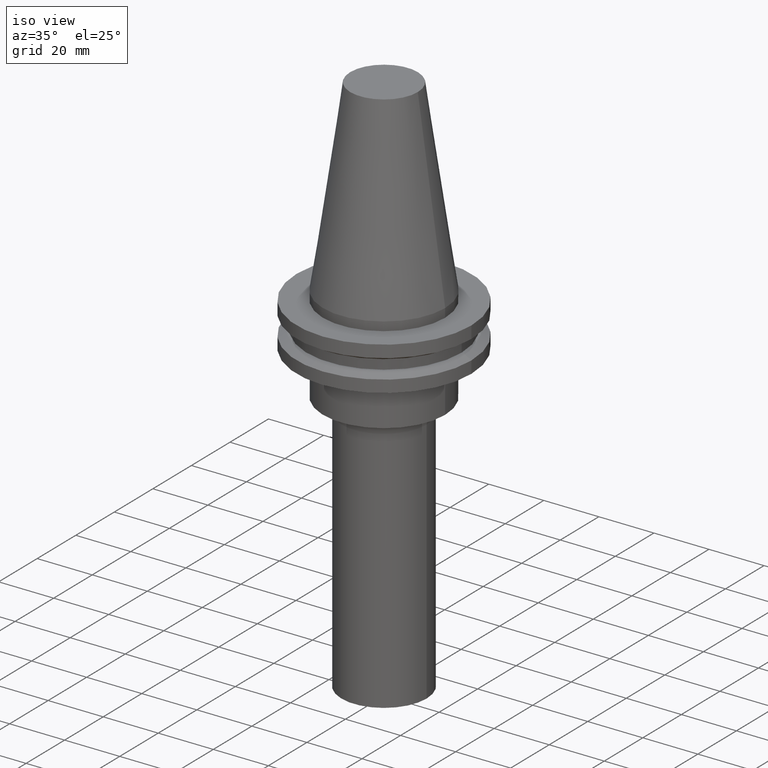
[diagram: clean part render]
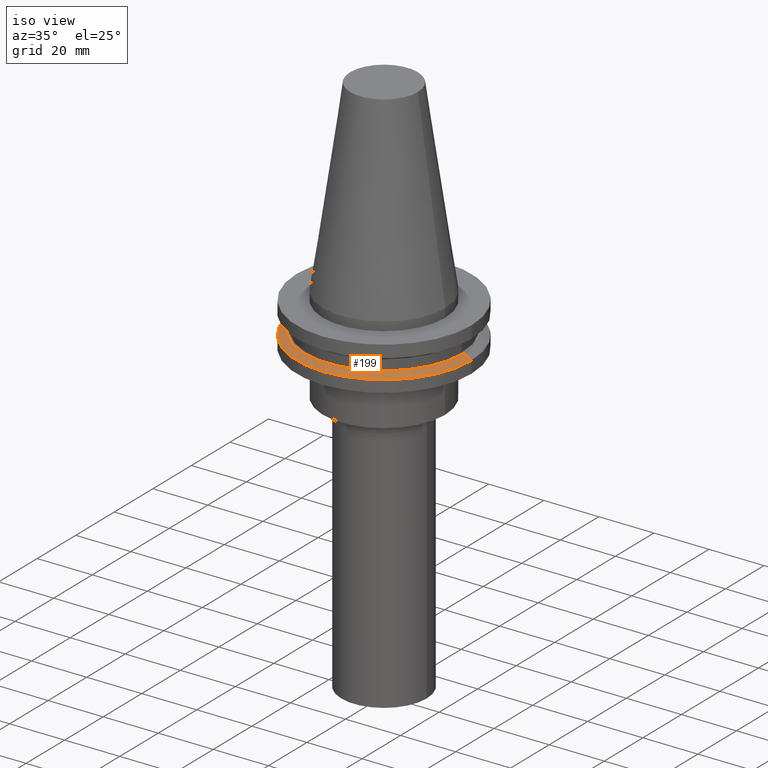
[diagram: same view with one face highlighted and labeled with its STEP entity id]
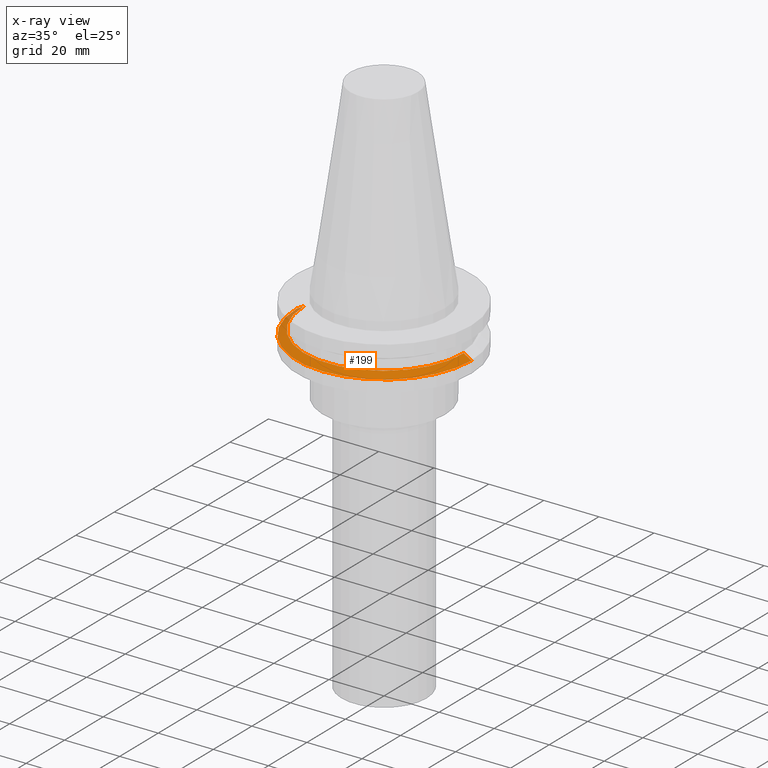
[diagram: x-ray of the same camera — body ghosted, the highlighted face saturated]
A machine part, iso view. The second image highlights one B-rep face of the part: STEP entity #199.
The next image is the same camera in x-ray: the body ghosted, the highlighted face saturated — about 3% of this face is hidden behind the body in this view.
In plain terms, the highlighted conical surface has half-angle 60 deg.
Its self-contained STEP definition (entity closure, byte-faithful):
#2 = VERTEX_POINT ( 'NONE', #304 ) ;
#19 = DIRECTION ( 'NONE',  ( 0.8660254037844387076, 1.060575238724906915E-16, -0.4999999999999998890 ) ) ;
#20 = AXIS2_PLACEMENT_3D ( 'NONE', #672, #251, #150 ) ;
#89 = LINE ( 'NONE', #442, #200 ) ;
#96 = LINE ( 'NONE', #439, #663 ) ;
#122 = EDGE_CURVE ( 'NONE', #758, #2, #151, .T. ) ;
#136 = CARTESIAN_POINT ( 'NONE',  ( 0.000000000000000000, 0.000000000000000000, -14.65472339340266572 ) ) ;
#150 = DIRECTION ( 'NONE',  ( 1.000000000000000000, 0.000000000000000000, 0.000000000000000000 ) ) ;
#151 = CIRCLE ( 'NONE', #754, 28.97919780457008088 ) ;
#179 = EDGE_CURVE ( 'NONE', #2, #394, #89, .T. ) ;
#199 = ADVANCED_FACE ( 'NONE', ( #219 ), #649, .T. ) ;
#200 = VECTOR ( 'NONE', #19, 1000.000000000000000 ) ;
#219 = FACE_OUTER_BOUND ( 'NONE', #409, .T. ) ;
#232 = EDGE_CURVE ( 'NONE', #625, #394, #280, .T. ) ;
#251 = DIRECTION ( 'NONE',  ( -0.000000000000000000, -0.000000000000000000, 1.000000000000000000 ) ) ;
#252 = DIRECTION ( 'NONE',  ( 1.000000000000000000, 0.000000000000000000, 0.000000000000000000 ) ) ;
#258 = CARTESIAN_POINT ( 'NONE',  ( -28.97919780457008088, 0.000000000000000000, -13.05499999999999794 ) ) ;
#263 = DIRECTION ( 'NONE',  ( -1.000000000000000000, 0.000000000000000000, 0.000000000000000000 ) ) ;
#280 = CIRCLE ( 'NONE', #20, 31.75000000000000000 ) ;
#304 = CARTESIAN_POINT ( 'NONE',  ( 28.97919780457008088, 3.718590885307660666E-15, -13.05499999999999794 ) ) ;
#394 = VERTEX_POINT ( 'NONE', #487 ) ;
#409 = EDGE_LOOP ( 'NONE', ( #769, #450, #593, #671 ) ) ;
#429 = DIRECTION ( 'NONE',  ( -0.8660254037844387076, 0.000000000000000000, -0.4999999999999998890 ) ) ;
#439 = CARTESIAN_POINT ( 'NONE',  ( -31.75000000000000000, 0.000000000000000000, -14.65472339340266572 ) ) ;
#442 = CARTESIAN_POINT ( 'NONE',  ( 31.75000000000000000, 3.888253587292846476E-15, -14.65472339340266572 ) ) ;
#446 = AXIS2_PLACEMENT_3D ( 'NONE', #136, #685, #263 ) ;
#450 = ORIENTED_EDGE ( 'NONE', *, *, #122, .F. ) ;
#487 = CARTESIAN_POINT ( 'NONE',  ( 31.75000000000000000, 0.000000000000000000, -14.65472339340266572 ) ) ;
#499 = DIRECTION ( 'NONE',  ( -0.000000000000000000, -0.000000000000000000, 1.000000000000000000 ) ) ;
#593 = ORIENTED_EDGE ( 'NONE', *, *, #759, .T. ) ;
#613 = CARTESIAN_POINT ( 'NONE',  ( 0.000000000000000000, 0.000000000000000000, -13.05499999999999794 ) ) ;
#625 = VERTEX_POINT ( 'NONE', #643 ) ;
#643 = CARTESIAN_POINT ( 'NONE',  ( -31.75000000000000000, 3.888253587292846476E-15, -14.65472339340266572 ) ) ;
#649 = CONICAL_SURFACE ( 'NONE', #446, 31.75000000000000000, 1.047197551196597853 ) ;
#663 = VECTOR ( 'NONE', #429, 1000.000000000000000 ) ;
#671 = ORIENTED_EDGE ( 'NONE', *, *, #232, .T. ) ;
#672 = CARTESIAN_POINT ( 'NONE',  ( 0.000000000000000000, 0.000000000000000000, -14.65472339340266572 ) ) ;
#685 = DIRECTION ( 'NONE',  ( 0.000000000000000000, 0.000000000000000000, -1.000000000000000000 ) ) ;
#754 = AXIS2_PLACEMENT_3D ( 'NONE', #613, #499, #252 ) ;
#758 = VERTEX_POINT ( 'NONE', #258 ) ;
#759 = EDGE_CURVE ( 'NONE', #758, #625, #96, .T. ) ;
#769 = ORIENTED_EDGE ( 'NONE', *, *, #179, .F. ) ;